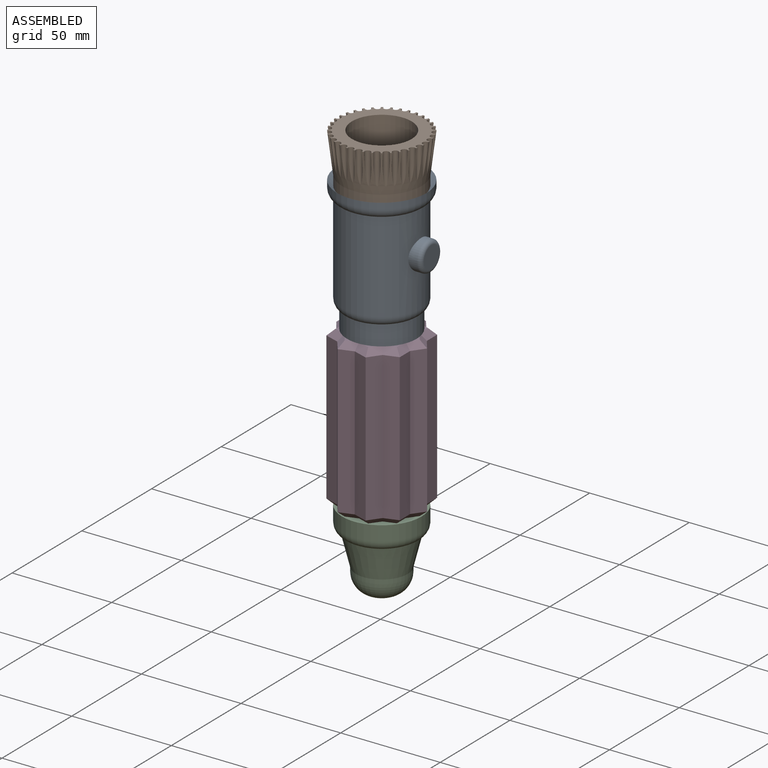
[diagram: assembled view]
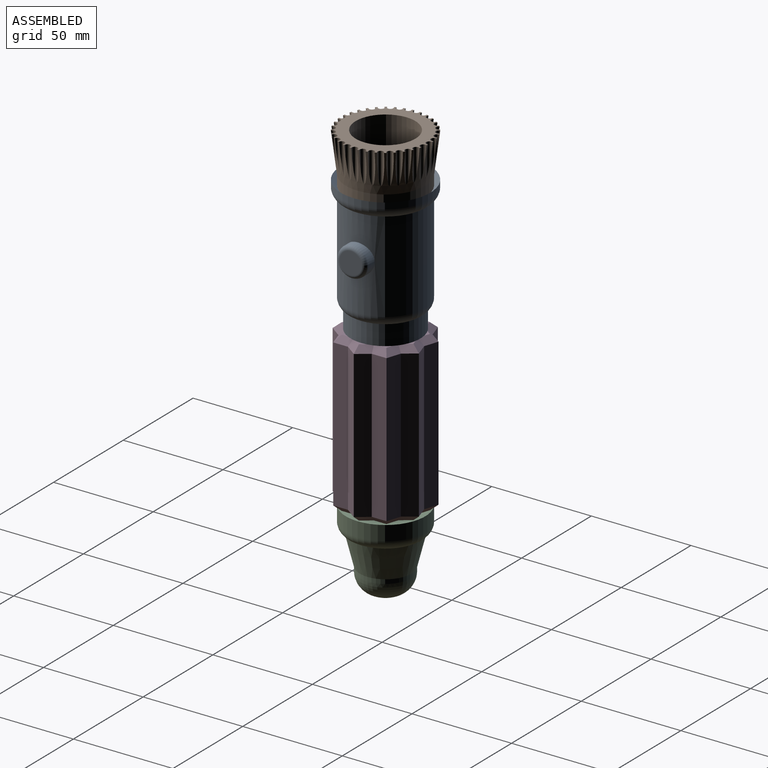
[diagram: assembled view, second angle]
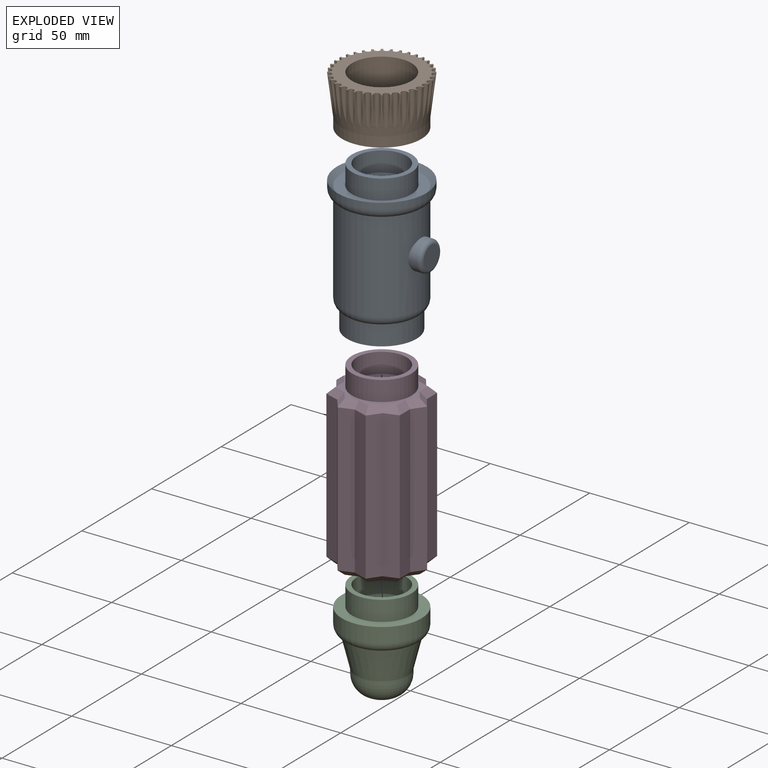
[diagram: exploded view]
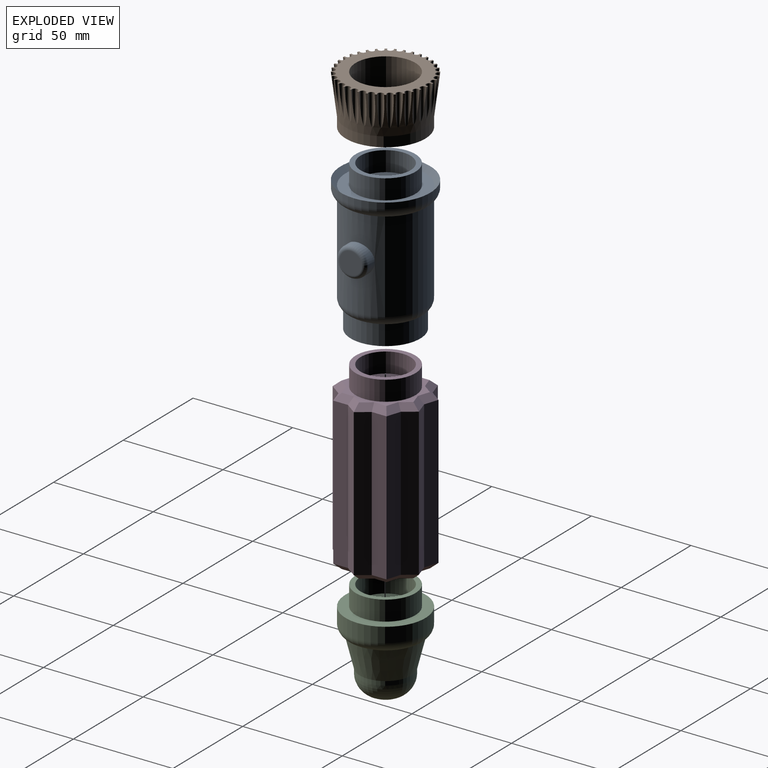
[diagram: exploded view, second angle]
ASSEMBLY  parts=4 mates=3
PART A: 17 faces, bbox 49.4x48.7x75 mm
  f0: plane 11x11mm, normal (1,0,0), area 95mm2, adj f10
  f1: cylinder r=7.5mm len=15mm, axis (1,0,0), area 175.4mm2, adj f2,f10
  f2: cylinder r=20mm len=45.67mm, axis (0,0,-1), area 5558.7mm2, adj f1,f5,f8
  f3: cylinder r=17.5mm len=35mm, axis (0,0,-1), area 1099.6mm2, adj f4,f5
  f4: plane 35x35mm, normal (0,0,-1), area 255.3mm2, adj f3,f11
  f5: torus R=15mm, axis (0,0,-1), area 629.5mm2, adj f2,f3
  f6: cylinder r=22.5mm len=45mm, axis (0,0,-1), area 448.1mm2, adj f7,f8
  f7: cone r=20mm half-angle=45deg, axis (0,0,1), area 472.1mm2, adj f6,f9
  f8: torus R=17.5mm, axis (0,0,-1), area 711.8mm2, adj f2,f6
  f9: plane 40x40mm, normal (0,0,1), area 549.8mm2, adj f7,f14
  f10: torus R=5.5mm, axis (1,0,0), area 133.7mm2, adj f0,f1
  f11: cylinder r=15mm len=60mm, axis (0,0,-1), area 5654.9mm2, adj f4,f12
  f12: plane 30x30mm, normal (0,0,-1), area 706.9mm2, adj f11
  f13: cylinder r=12.5mm len=25mm, axis (0,0,-1), area 785.4mm2, adj f15,f16
  f14: cylinder r=15mm len=30mm, axis (0,0,-1), area 942.5mm2, adj f9,f15
  f15: plane 30x30mm, normal (0,0,1), area 216mm2, adj f13,f14
  f16: plane 25x25mm, normal (0,0,1), area 490.9mm2, adj f13
PART B: 41 faces, bbox 45x45x25 mm
  f0: plane 44.92x44.92mm, normal (0,0,1), area 704.9mm2, adj f3,f4,f5,f6,f7,f8,f9,f10
  f1: cylinder r=20mm len=40mm, axis (0,0,-1), area 628.3mm2, adj f2,f3
  f2: plane 40x40mm, normal (0,0,-1), area 549.8mm2, adj f1,f4
  f3: cone r=20mm half-angle=7.1deg, axis (0,0,1), area 1684.5mm2, adj f0,f1,f5,f6,f7,f8,f9,f10
  f4: cylinder r=15mm len=30mm, axis (0,0,-1), area 2356.2mm2, adj f0,f2
  f5: cylinder r=1.5mm len=16.01mm, axis (0,0,-1), area 54.9mm2, adj f0,f3
  f6: cylinder r=1.5mm len=16.01mm, axis (0,0,-1), area 54.9mm2, adj f0,f3
  f7: cylinder r=1.5mm len=16.01mm, axis (0,0,-1), area 54.9mm2, adj f0,f3
  f8: cylinder r=1.5mm len=16.01mm, axis (0,0,-1), area 54.9mm2, adj f0,f3
  f9: cylinder r=1.5mm len=16.01mm, axis (0,0,-1), area 54.9mm2, adj f0,f3
  f10: cylinder r=1.5mm len=16.01mm, axis (0,0,-1), area 54.9mm2, adj f0,f3
  f11: cylinder r=1.5mm len=16.01mm, axis (0,0,-1), area 54.9mm2, adj f0,f3
  f12: cylinder r=1.5mm len=16.01mm, axis (0,0,-1), area 54.9mm2, adj f0,f3
  f13: cylinder r=1.5mm len=16.01mm, axis (0,0,-1), area 54.9mm2, adj f0,f3
  f14: cylinder r=1.5mm len=16.01mm, axis (0,0,-1), area 54.9mm2, adj f0,f3
  f15: cylinder r=1.5mm len=16.01mm, axis (0,0,-1), area 54.9mm2, adj f0,f3
  f16: cylinder r=1.5mm len=16.01mm, axis (0,0,-1), area 54.9mm2, adj f0,f3
  f17: cylinder r=1.5mm len=16.01mm, axis (0,0,-1), area 54.9mm2, adj f0,f3
  f18: cylinder r=1.5mm len=16.01mm, axis (0,0,-1), area 55.5mm2, adj f0,f3
  f19: cylinder r=1.5mm len=16.01mm, axis (0,0,-1), area 54.9mm2, adj f0,f3
  f20: cylinder r=1.5mm len=16.01mm, axis (0,0,-1), area 54.9mm2, adj f0,f3
  f21: cylinder r=1.5mm len=16.01mm, axis (0,0,-1), area 54.9mm2, adj f0,f3
  f22: cylinder r=1.5mm len=16.01mm, axis (0,0,-1), area 54.9mm2, adj f0,f3
  f23: cylinder r=1.5mm len=16.01mm, axis (0,0,-1), area 54.9mm2, adj f0,f3
  f24: cylinder r=1.5mm len=16.01mm, axis (0,0,-1), area 54.9mm2, adj f0,f3
  f25: cylinder r=1.5mm len=16.01mm, axis (0,0,-1), area 54.9mm2, adj f0,f3
  f26: cylinder r=1.5mm len=16.01mm, axis (0,0,-1), area 54.9mm2, adj f0,f3
  f27: cylinder r=1.5mm len=16.01mm, axis (0,0,-1), area 54.9mm2, adj f0,f3
  f28: cylinder r=1.5mm len=16.01mm, axis (0,0,-1), area 54.9mm2, adj f0,f3
  f29: cylinder r=1.5mm len=16.01mm, axis (0,0,-1), area 54.9mm2, adj f0,f3
  f30: cylinder r=1.5mm len=16.01mm, axis (0,0,-1), area 54.9mm2, adj f0,f3
  f31: cylinder r=1.5mm len=16.01mm, axis (0,0,-1), area 54.9mm2, adj f0,f3
  f32: cylinder r=1.5mm len=16.01mm, axis (0,0,-1), area 54.9mm2, adj f0,f3
  f33: cylinder r=1.5mm len=16.01mm, axis (0,0,-1), area 54.9mm2, adj f0,f3
  f34: cylinder r=1.5mm len=16.01mm, axis (0,0,-1), area 54.9mm2, adj f0,f3
  f35: cylinder r=1.5mm len=16.01mm, axis (0,0,-1), area 54.9mm2, adj f0,f3
  f36: cylinder r=1.5mm len=16.01mm, axis (0,0,-1), area 54.9mm2, adj f0,f3
  f37: cylinder r=1.5mm len=16.01mm, axis (0,0,-1), area 54.9mm2, adj f0,f3
  f38: cylinder r=1.5mm len=16.01mm, axis (0,0,-1), area 54.9mm2, adj f0,f3
  f39: cylinder r=1.5mm len=16.01mm, axis (0,0,-1), area 54.9mm2, adj f0,f3
  f40: cylinder r=1.5mm len=16.01mm, axis (0,0,-1), area 54.9mm2, adj f0,f3
PART C: 11 faces, bbox 43.3x43.3x50 mm
  f0: cylinder r=13.03mm len=26.05mm, axis (0,0,1), area 172.5mm2, adj f1,f5
  f1: cone r=13.03mm half-angle=14deg, axis (0,0,1), area 1533.3mm2, adj f0,f6
  f2: cylinder r=20mm len=40mm, axis (0,0,1), area 944.3mm2, adj f3,f6
  f3: plane 40x40mm, normal (0,0,1), area 549.8mm2, adj f2,f8
  f4: plane 6.05x6.05mm, normal (0,0,-1), area 28.8mm2, adj f5
  f5: torus R=3.03mm, axis (0,0,1), area 927.1mm2, adj f0,f4
  f6: torus R=15mm, axis (0,0,-1), area 693.4mm2, adj f1,f2
  f7: cylinder r=12.5mm len=25mm, axis (0,0,-1), area 785.4mm2, adj f9,f10
  f8: cylinder r=15mm len=30mm, axis (0,0,-1), area 942.5mm2, adj f3,f9
  f9: plane 30x30mm, normal (0,0,1), area 216mm2, adj f7,f8
  f10: plane 25x25mm, normal (0,0,1), area 490.9mm2, adj f7
PART D: 67 faces, bbox 45.5x43.3x90 mm
  f0: plane 74x7.04mm, normal (0.31,0.95,0), area 547.5mm2, adj f1,f19,f37,f60
  f1: plane 74x5.99mm, normal (0.81,0.59,0), area 547.5mm2, adj f0,f2,f35,f58
  f2: plane 74x7.04mm, normal (-0.31,0.95,0), area 547.5mm2, adj f1,f3,f33,f56
  f3: plane 74x7.04mm, normal (0.31,0.95,0), area 547.5mm2, adj f2,f4,f31,f54
  f4: plane 74x5.99mm, normal (-0.81,0.59,0), area 547.5mm2, adj f3,f5,f29,f52
  f5: plane 74x7.04mm, normal (-0.31,0.95,0), area 547.5mm2, adj f4,f6,f28,f50
  f6: plane 74x7.4mm, normal (-1,0,0), area 547.5mm2, adj f5,f7,f30,f49
  f7: plane 74x5.99mm, normal (-0.81,0.59,0), area 547.5mm2, adj f6,f8,f32,f48
  f8: plane 77x10.11mm, normal (-0.81,-0.59,0), area 572.6mm2, adj f7,f9,f21,f34,f48,f51
  f9: plane 74x7.4mm, normal (-1,0,0), area 547.5mm2, adj f8,f10,f36,f51
  f10: plane 74x7.04mm, normal (-0.31,-0.95,0), area 547.5mm2, adj f9,f11,f38,f53
  f11: plane 74x5.99mm, normal (-0.81,-0.59,0), area 547.5mm2, adj f10,f12,f40,f55
  f12: plane 74x7.04mm, normal (0.31,-0.95,0), area 547.5mm2, adj f11,f13,f42,f57
  f13: plane 74x7.04mm, normal (-0.31,-0.95,0), area 547.5mm2, adj f12,f14,f44,f59
  f14: plane 74x5.99mm, normal (0.81,-0.59,0), area 547.5mm2, adj f13,f15,f46,f61
  f15: plane 74x7.04mm, normal (0.31,-0.95,0), area 547.5mm2, adj f14,f16,f47,f63
  f16: plane 74x7.4mm, normal (1,0,0), area 547.5mm2, adj f15,f17,f45,f65
  f17: plane 74x5.99mm, normal (0.81,-0.59,0), area 547.5mm2, adj f16,f18,f43,f66
  f18: plane 74x5.99mm, normal (0.81,0.59,0), area 547.5mm2, adj f17,f19,f41,f64
  f19: plane 74x7.4mm, normal (1,0,0), area 547.5mm2, adj f0,f18,f39,f62
  f20: plane 38.12x36.26mm, normal (0,0,1), area 248.3mm2, adj f23,f28,f29,f30,f31,f32,f33,f34
  f21: plane 39.98x36.26mm, normal (0,0,-1), area 271.6mm2, adj f8,f26,f48,f49,f50,f51,f52,f53
  f22: cylinder r=12.5mm len=25mm, axis (0,0,-1), area 785.4mm2, adj f24,f25
  f23: cylinder r=15mm len=30mm, axis (0,0,-1), area 942.5mm2, adj f20,f24
  f24: plane 30x30mm, normal (0,0,1), area 216mm2, adj f22,f23
  f25: plane 25x25mm, normal (0,0,1), area 490.9mm2, adj f22
  f26: cylinder r=15mm len=77mm, axis (0,0,-1), area 7257.1mm2, adj f21,f27
  f27: plane 30x30mm, normal (0,0,-1), area 706.9mm2, adj f26
  f28: plane 8.89x4.47mm, normal (-0.22,0.67,0.71), area 28.8mm2, adj f5,f20,f29,f30
  f29: plane 8.54x5.49mm, normal (-0.57,0.42,0.71), area 28.8mm2, adj f4,f20,f28,f31
  f30: plane 8.37x3mm, normal (-0.71,0,0.71), area 28.8mm2, adj f6,f20,f28,f32
  f31: plane 7.04x5.44mm, normal (0.22,0.67,0.71), area 28.8mm2, adj f3,f20,f29,f33
  f32: plane 7.35x5.99mm, normal (-0.57,0.42,0.71), area 28.8mm2, adj f7,f20,f30,f34
  f33: plane 7.04x5.44mm, normal (-0.22,0.67,0.71), area 28.8mm2, adj f2,f20,f31,f35
  f34: plane 7.35x5.99mm, normal (-0.57,-0.42,0.71), area 28.8mm2, adj f8,f20,f32,f36
  f35: plane 8.54x5.49mm, normal (0.57,0.42,0.71), area 28.8mm2, adj f1,f20,f33,f37
  f36: plane 8.37x3mm, normal (-0.71,0,0.71), area 28.8mm2, adj f9,f20,f34,f38
  f37: plane 8.89x4.47mm, normal (0.22,0.67,0.71), area 28.8mm2, adj f0,f20,f35,f39
  f38: plane 8.89x4.47mm, normal (-0.22,-0.67,0.71), area 28.8mm2, adj f10,f20,f36,f40
  f39: plane 8.37x3mm, normal (0.71,0,0.71), area 28.8mm2, adj f19,f20,f37,f41
  f40: plane 8.54x5.49mm, normal (-0.57,-0.42,0.71), area 28.8mm2, adj f11,f20,f38,f42
  f41: plane 7.35x5.99mm, normal (0.57,0.42,0.71), area 28.8mm2, adj f18,f20,f39,f43
  f42: plane 7.04x5.44mm, normal (0.22,-0.67,0.71), area 28.8mm2, adj f12,f20,f40,f44
  f43: plane 7.35x5.99mm, normal (0.57,-0.42,0.71), area 28.8mm2, adj f17,f20,f41,f45
  f44: plane 7.04x5.44mm, normal (-0.22,-0.67,0.71), area 28.8mm2, adj f13,f20,f42,f46
  f45: plane 8.37x3mm, normal (0.71,0,0.71), area 28.8mm2, adj f16,f20,f43,f47
  f46: plane 8.54x5.49mm, normal (0.57,-0.42,0.71), area 28.8mm2, adj f14,f20,f44,f47
  f47: plane 8.89x4.47mm, normal (0.22,-0.67,0.71), area 28.8mm2, adj f15,f20,f45,f46
  f48: plane 8.54x7.35mm, normal (-0.57,0.42,-0.71), area 35.5mm2, adj f7,f8,f21,f49
  f49: plane 8.37x3mm, normal (-0.71,0,-0.71), area 28.8mm2, adj f6,f21,f48,f50
  f50: plane 8.89x4.47mm, normal (-0.22,0.67,-0.71), area 28.8mm2, adj f5,f21,f49,f52
  f51: plane 7.4x3mm, normal (-0.71,0,-0.71), area 18mm2, adj f8,f9,f21,f53
  f52: plane 8.54x5.49mm, normal (-0.57,0.42,-0.71), area 28.8mm2, adj f4,f21,f50,f54
  f53: plane 8.89x4.47mm, normal (-0.22,-0.67,-0.71), area 28.8mm2, adj f10,f21,f51,f55
  f54: plane 7.04x5.44mm, normal (0.22,0.67,-0.71), area 28.8mm2, adj f3,f21,f52,f56
  f55: plane 8.54x5.49mm, normal (-0.57,-0.42,-0.71), area 28.8mm2, adj f11,f21,f53,f57
  f56: plane 7.04x5.44mm, normal (-0.22,0.67,-0.71), area 28.8mm2, adj f2,f21,f54,f58
  f57: plane 7.04x5.44mm, normal (0.22,-0.67,-0.71), area 28.8mm2, adj f12,f21,f55,f59
  f58: plane 8.54x5.49mm, normal (0.57,0.42,-0.71), area 28.8mm2, adj f1,f21,f56,f60
  f59: plane 7.04x5.44mm, normal (-0.22,-0.67,-0.71), area 28.8mm2, adj f13,f21,f57,f61
  f60: plane 8.89x4.47mm, normal (0.22,0.67,-0.71), area 28.8mm2, adj f0,f21,f58,f62
  f61: plane 8.54x5.49mm, normal (0.57,-0.42,-0.71), area 28.8mm2, adj f14,f21,f59,f63
  f62: plane 8.37x3mm, normal (0.71,0,-0.71), area 28.8mm2, adj f19,f21,f60,f64
  f63: plane 8.89x4.47mm, normal (0.22,-0.67,-0.71), area 28.8mm2, adj f15,f21,f61,f65
  f64: plane 7.35x5.99mm, normal (0.57,0.42,-0.71), area 28.8mm2, adj f18,f21,f62,f66
  f65: plane 8.37x3mm, normal (0.71,0,-0.71), area 28.8mm2, adj f16,f21,f63,f66
  f66: plane 7.35x5.99mm, normal (0.57,-0.42,-0.71), area 28.8mm2, adj f17,f21,f64,f65
PLACE A t=(96.61,384.36,-1210.99)mm
PLACE B rot(axis=(0,0,1),0deg) t=(96.61,384.36,-1145.99)mm
PLACE C t=(96.61,384.36,-1303.1)mm
PLACE D t=(96.61,384.36,-1290.99)mm
MATE slider C.f8 <-> D.f26  axis (0,0,1) through (96.61,384.36,-1290.99)mm
MATE slider A.f14 <-> B.f1  axis (0,0,1) through (96.61,384.36,-1145.99)mm
MATE slider A.f11 <-> D.f23  axis (0,0,-1) through (96.61,384.36,-1210.99)mm
